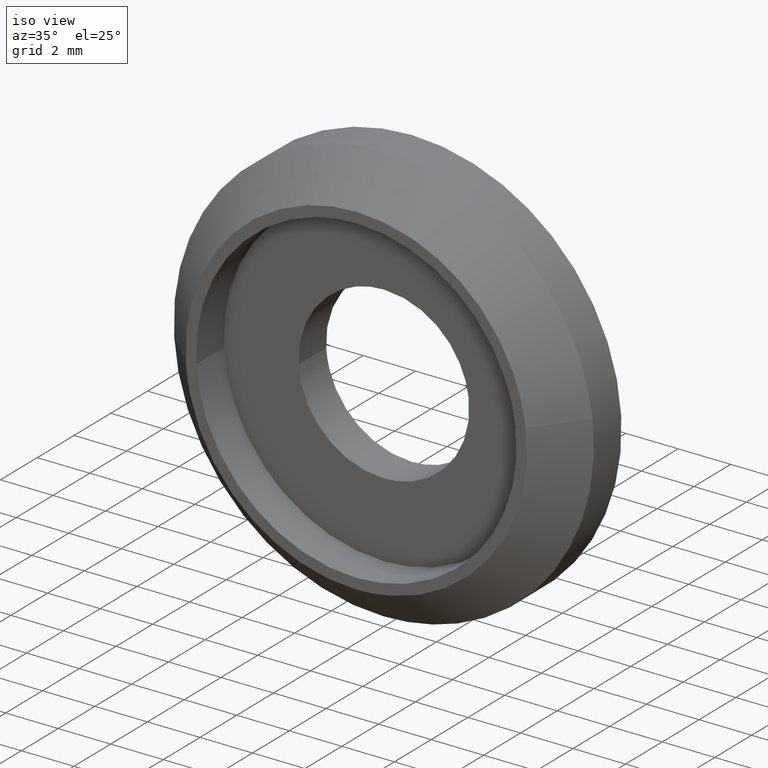
[diagram: clean part render]
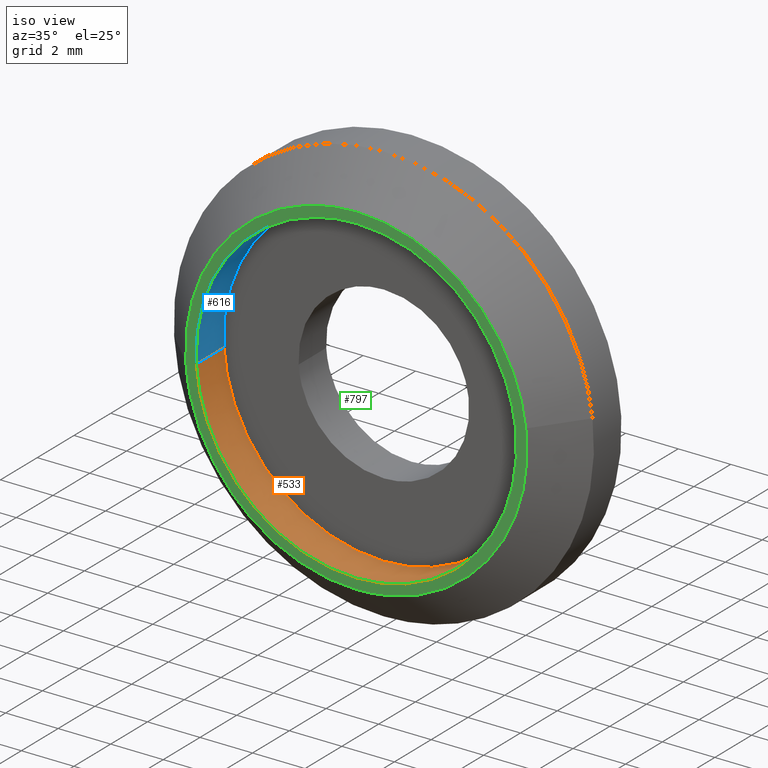
[diagram: same view with three faces highlighted in distinct colors, each labeled with its STEP entity id]
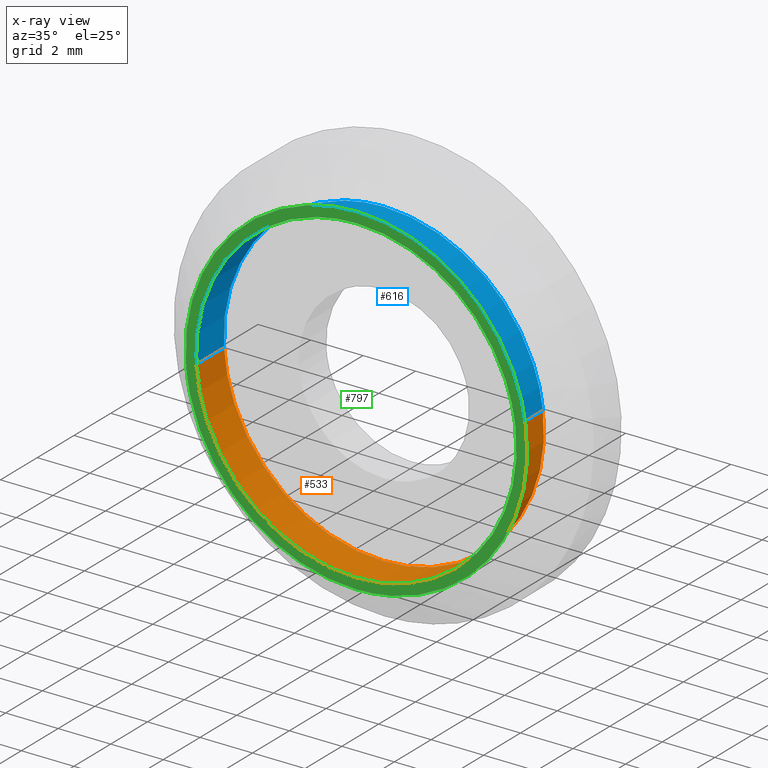
[diagram: x-ray of the same camera — body ghosted, the three highlighted faces saturated]
A machine part, iso view with three faces highlighted in distinct colors.
The next image is the same camera in x-ray (body ghosted, the three faces saturated) — at least one of them is partly hidden behind the body in this view.
Their STEP definitions:

[orange] entity #533 — the highlighted face is a freeform B-spline surface patch.
#431=CARTESIAN_POINT('',(6.057358110818365,-1.537500000000001,0.720008831406227));
#432=CARTESIAN_POINT('',(6.077964454236495,-1.537500000000000,0.546649844691664));
#433=CARTESIAN_POINT('',(6.088622270373387,-1.537500000000000,0.372396091162628));
#434=CARTESIAN_POINT('',(6.461018361536014,-1.537500000000000,-5.716226179210759));
#435=CARTESIAN_POINT('',(0.372396091162628,-1.537500000000000,-6.088622270373387));
#436=CARTESIAN_POINT('',(-5.716226179210759,-1.537500000000000,-6.461018361536014));
#437=CARTESIAN_POINT('',(-6.088622270373387,-1.537500000000000,-0.372396091162628));
#438=CARTESIAN_POINT('',(6.057358110818365,0.038437500000000,0.720008831406227));
#439=CARTESIAN_POINT('',(6.077964454236495,0.038437500000000,0.546649844691664));
#440=CARTESIAN_POINT('',(6.088622270373387,0.038437500000000,0.372396091162628));
#441=CARTESIAN_POINT('',(6.461018361536014,0.038437500000000,-5.716226179210759));
#442=CARTESIAN_POINT('',(0.372396091162628,0.038437500000000,-6.088622270373387));
#443=CARTESIAN_POINT('',(-5.716226179210759,0.038437500000000,-6.461018361536014));
#444=CARTESIAN_POINT('',(-6.088622270373387,0.038437500000000,-0.372396091162628));
#452=(BOUNDED_SURFACE()B_SPLINE_SURFACE(2,1,((#431,#438),(#432,#439),(#433,#440),(#434,#441),(#435,#442),(#436,#443),(#437,#444)),.UNSPECIFIED.,.F.,.F.,.U.)B_SPLINE_SURFACE_WITH_KNOTS((3,2,2,3),(2,2),(0.0,0.404272436876141,10.511083358779659,20.617894280683181),(0.0,1.0),.UNSPECIFIED.)GEOMETRIC_REPRESENTATION_ITEM()RATIONAL_B_SPLINE_SURFACE(((0.977505800795127,0.977505800795127),(0.988284271247462,0.988284271247462),(1.0,1.0),(0.707106781186548,0.707106781186548),(1.0,1.0),(0.707106781186548,0.707106781186548),(1.0,1.0)))REPRESENTATION_ITEM('')SURFACE());
#453=CARTESIAN_POINT('',(6.057358659377211,5.244424E-014,0.720004216408696));
#454=VERTEX_POINT('',#453);
#455=CARTESIAN_POINT('',(0.0,0.0,-6.100000000000001));
#456=VERTEX_POINT('',#455);
#457=CARTESIAN_POINT('',(6.057358659377211,5.244424E-014,0.720004216408696));
#458=CARTESIAN_POINT('',(6.100000000000000,0.0,0.361264797983567));
#459=CARTESIAN_POINT('',(6.100000000000001,0.0,0.0));
#460=CARTESIAN_POINT('',(6.100000000000001,0.0,-6.100000000000001));
#461=CARTESIAN_POINT('',(0.0,0.0,-6.100000000000001));
#469=(BOUNDED_CURVE()B_SPLINE_CURVE(2,(#457,#458,#459,#460,#461),.UNSPECIFIED.,.F.,.U.)B_SPLINE_CURVE_WITH_KNOTS((3,2,3),(0.229562602276335,0.250000000000000,0.500000000000000),.UNSPECIFIED.)CURVE()GEOMETRIC_REPRESENTATION_ITEM()RATIONAL_B_SPLINE_CURVE((0.956027006564265,0.976056099186180,1.0,0.707106781186547,1.0))REPRESENTATION_ITEM(''));
#470=EDGE_CURVE('',#454,#456,#469,.T.);
#471=ORIENTED_EDGE('',*,*,#470,.T.);
#472=CARTESIAN_POINT('',(-6.088622529358291,5.007800E-014,-0.372391856748557));
#473=VERTEX_POINT('',#472);
#474=CARTESIAN_POINT('',(0.0,0.0,-6.100000000000001));
#475=CARTESIAN_POINT('',(-5.738311006366022,0.0,-6.100000000000001));
#476=CARTESIAN_POINT('',(-6.088622529358291,5.007800E-014,-0.372391856748557));
#484=(BOUNDED_CURVE()B_SPLINE_CURVE(2,(#474,#475,#476),.UNSPECIFIED.,.F.,.U.)B_SPLINE_CURVE_WITH_KNOTS((3,3),(0.500000000000000,0.739333082241960),.UNSPECIFIED.)CURVE()GEOMETRIC_REPRESENTATION_ITEM()RATIONAL_B_SPLINE_CURVE((1.0,0.719603852694431,0.976072298856161))REPRESENTATION_ITEM(''));
#485=EDGE_CURVE('',#456,#473,#484,.T.);
#486=ORIENTED_EDGE('',*,*,#485,.T.);
#487=CARTESIAN_POINT('',(-6.088622526160913,-1.500000000000000,-0.372391909026416));
#488=VERTEX_POINT('',#487);
#489=CARTESIAN_POINT('',(-6.088622526160913,-1.500000000000000,-0.372391909026416));
#490=CARTESIAN_POINT('',(-6.088622529358291,5.007800E-014,-0.372391856748557));
#491=QUASI_UNIFORM_CURVE('',1,(#489,#490),.UNSPECIFIED.,.F.,.U.);
#492=EDGE_CURVE('',#488,#473,#491,.T.);
#493=ORIENTED_EDGE('',*,*,#492,.F.);
#494=CARTESIAN_POINT('',(0.0,-1.500000000000000,-6.100000000000001));
#495=VERTEX_POINT('',#494);
#496=CARTESIAN_POINT('',(0.0,-1.500000000000000,-6.100000000000001));
#497=CARTESIAN_POINT('',(-5.738310957003925,-1.500000000000000,-6.100000000000001));
#498=CARTESIAN_POINT('',(-6.088622526160913,-1.500000000000000,-0.372391909026416));
#506=(BOUNDED_CURVE()B_SPLINE_CURVE(2,(#496,#497,#498),.UNSPECIFIED.,.F.,.U.)B_SPLINE_CURVE_WITH_KNOTS((3,3),(0.500000000000000,0.739333080760446),.UNSPECIFIED.)CURVE()GEOMETRIC_REPRESENTATION_ITEM()RATIONAL_B_SPLINE_CURVE((1.0,0.719603854430132,0.976072295680992))REPRESENTATION_ITEM(''));
#507=EDGE_CURVE('',#495,#488,#506,.T.);
#508=ORIENTED_EDGE('',*,*,#507,.F.);
#509=CARTESIAN_POINT('',(6.057358652605915,-1.500000000000000,0.720004273375631));
#510=VERTEX_POINT('',#509);
#511=CARTESIAN_POINT('',(6.057358652605915,-1.500000000000000,0.720004273375631));
#512=CARTESIAN_POINT('',(6.100000000000001,-1.500000000000000,0.361264826768153));
#513=CARTESIAN_POINT('',(6.100000000000001,-1.500000000000000,0.0));
#514=CARTESIAN_POINT('',(6.100000000000001,-1.500000000000000,-6.100000000000001));
#515=CARTESIAN_POINT('',(0.0,-1.500000000000000,-6.100000000000001));
#523=(BOUNDED_CURVE()B_SPLINE_CURVE(2,(#511,#512,#513,#514,#515),.UNSPECIFIED.,.F.,.U.)B_SPLINE_CURVE_WITH_KNOTS((3,2,3),(0.229562600686930,0.250000000000000,0.500000000000000),.UNSPECIFIED.)CURVE()GEOMETRIC_REPRESENTATION_ITEM()RATIONAL_B_SPLINE_CURVE((0.956027003448961,0.976056097324076,1.0,0.707106781186547,1.0))REPRESENTATION_ITEM(''));
#524=EDGE_CURVE('',#510,#495,#523,.T.);
#525=ORIENTED_EDGE('',*,*,#524,.F.);
#526=CARTESIAN_POINT('',(6.057358652605915,-1.500000000000000,0.720004273375631));
#527=CARTESIAN_POINT('',(6.057358659377211,5.244424E-014,0.720004216408696));
#528=QUASI_UNIFORM_CURVE('',1,(#526,#527),.UNSPECIFIED.,.F.,.U.);
#529=EDGE_CURVE('',#510,#454,#528,.T.);
#530=ORIENTED_EDGE('',*,*,#529,.T.);
#531=EDGE_LOOP('',(#471,#486,#493,#508,#525,#530));
#532=FACE_OUTER_BOUND('',#531,.T.);
#533=ADVANCED_FACE('',(#532),#452,.F.);

[blue] entity #616 — the highlighted face is a freeform B-spline surface patch.
#453=CARTESIAN_POINT('',(6.057358659377211,5.244424E-014,0.720004216408696));
#454=VERTEX_POINT('',#453);
#472=CARTESIAN_POINT('',(-6.088622529358291,5.007800E-014,-0.372391856748557));
#473=VERTEX_POINT('',#472);
#487=CARTESIAN_POINT('',(-6.088622526160913,-1.500000000000000,-0.372391909026416));
#488=VERTEX_POINT('',#487);
#489=CARTESIAN_POINT('',(-6.088622526160913,-1.500000000000000,-0.372391909026416));
#490=CARTESIAN_POINT('',(-6.088622529358291,5.007800E-014,-0.372391856748557));
#491=QUASI_UNIFORM_CURVE('',1,(#489,#490),.UNSPECIFIED.,.F.,.U.);
#492=EDGE_CURVE('',#488,#473,#491,.T.);
#509=CARTESIAN_POINT('',(6.057358652605915,-1.500000000000000,0.720004273375631));
#510=VERTEX_POINT('',#509);
#526=CARTESIAN_POINT('',(6.057358652605915,-1.500000000000000,0.720004273375631));
#527=CARTESIAN_POINT('',(6.057358659377211,5.244424E-014,0.720004216408696));
#528=QUASI_UNIFORM_CURVE('',1,(#526,#527),.UNSPECIFIED.,.F.,.U.);
#529=EDGE_CURVE('',#510,#454,#528,.T.);
#534=CARTESIAN_POINT('',(-6.088622270373387,-1.537500000000000,-0.372396091162628));
#535=CARTESIAN_POINT('',(-6.461018361536014,-1.537500000000000,5.716226179210759));
#536=CARTESIAN_POINT('',(-0.372396091162628,-1.537500000000000,6.088622270373387));
#537=CARTESIAN_POINT('',(5.377415294120956,-1.537500000000000,6.440295800068416));
#538=CARTESIAN_POINT('',(6.057358110818365,-1.537500000000001,0.720008831406227));
#539=CARTESIAN_POINT('',(-6.088622270373387,0.038437500000000,-0.372396091162628));
#540=CARTESIAN_POINT('',(-6.461018361536014,0.038437500000000,5.716226179210759));
#541=CARTESIAN_POINT('',(-0.372396091162628,0.038437500000000,6.088622270373387));
#542=CARTESIAN_POINT('',(5.377415294120956,0.038437500000000,6.440295800068416));
#543=CARTESIAN_POINT('',(6.057358110818365,0.038437500000000,0.720008831406227));
#551=(BOUNDED_SURFACE()B_SPLINE_SURFACE(2,1,((#534,#539),(#535,#540),(#536,#541),(#537,#542),(#538,#543)),.UNSPECIFIED.,.F.,.F.,.U.)B_SPLINE_SURFACE_WITH_KNOTS((3,2,3),(2,2),(0.0,10.106810921903520,19.809349406930899),(0.0,1.0),.UNSPECIFIED.)GEOMETRIC_REPRESENTATION_ITEM()RATIONAL_B_SPLINE_SURFACE(((1.0,1.0),(0.707106781186548,0.707106781186548),(1.0,1.0),(0.718822509939086,0.718822509939086),(0.977505800795127,0.977505800795127)))REPRESENTATION_ITEM('')SURFACE());
#552=CARTESIAN_POINT('',(0.0,0.0,6.100000000000001));
#553=VERTEX_POINT('',#552);
#554=CARTESIAN_POINT('',(0.0,0.0,6.100000000000001));
#555=CARTESIAN_POINT('',(5.417868765141001,0.0,6.100000000000001));
#556=CARTESIAN_POINT('',(6.057358659377211,5.244424E-014,0.720004216408696));
#564=(BOUNDED_CURVE()B_SPLINE_CURVE(2,(#554,#555,#556),.UNSPECIFIED.,.F.,.U.)B_SPLINE_CURVE_WITH_KNOTS((3,3),(0.0,0.229562602276335),.UNSPECIFIED.)CURVE()GEOMETRIC_REPRESENTATION_ITEM()RATIONAL_B_SPLINE_CURVE((1.0,0.731050682000367,0.956027006564265))REPRESENTATION_ITEM(''));
#565=EDGE_CURVE('',#553,#454,#564,.T.);
#566=ORIENTED_EDGE('',*,*,#565,.T.);
#567=ORIENTED_EDGE('',*,*,#529,.F.);
#568=CARTESIAN_POINT('',(0.0,-1.500000000000000,6.100000000000001));
#569=VERTEX_POINT('',#568);
#570=CARTESIAN_POINT('',(0.0,-1.500000000000000,6.100000000000001));
#571=CARTESIAN_POINT('',(5.417868713829519,-1.499999999999999,6.100000000000001));
#572=CARTESIAN_POINT('',(6.057358652605915,-1.500000000000000,0.720004273375631));
#580=(BOUNDED_CURVE()B_SPLINE_CURVE(2,(#570,#571,#572),.UNSPECIFIED.,.F.,.U.)B_SPLINE_CURVE_WITH_KNOTS((3,3),(0.0,0.229562600686930),.UNSPECIFIED.)CURVE()GEOMETRIC_REPRESENTATION_ITEM()RATIONAL_B_SPLINE_CURVE((1.0,0.731050683862472,0.956027003448961))REPRESENTATION_ITEM(''));
#581=EDGE_CURVE('',#569,#510,#580,.T.);
#582=ORIENTED_EDGE('',*,*,#581,.F.);
#583=CARTESIAN_POINT('',(-6.088622526160913,-1.500000000000000,-0.372391909026416));
#584=CARTESIAN_POINT('',(-6.100000000000001,-1.500000000000000,-0.186369759190246));
#585=CARTESIAN_POINT('',(-6.100000000000001,-1.500000000000000,0.0));
#586=CARTESIAN_POINT('',(-6.100000000000001,-1.500000000000000,6.100000000000001));
#587=CARTESIAN_POINT('',(0.0,-1.500000000000000,6.100000000000001));
#595=(BOUNDED_CURVE()B_SPLINE_CURVE(2,(#583,#584,#585,#586,#587),.UNSPECIFIED.,.F.,.U.)B_SPLINE_CURVE_WITH_KNOTS((3,2,3),(0.739333080760446,0.750000000000000,1.0),.UNSPECIFIED.)CURVE()GEOMETRIC_REPRESENTATION_ITEM()RATIONAL_B_SPLINE_CURVE((0.976072295680992,0.987502926756415,1.0,0.707106781186547,1.0))REPRESENTATION_ITEM(''));
#596=EDGE_CURVE('',#488,#569,#595,.T.);
#597=ORIENTED_EDGE('',*,*,#596,.F.);
#598=ORIENTED_EDGE('',*,*,#492,.T.);
#599=CARTESIAN_POINT('',(-6.088622529358291,5.007800E-014,-0.372391856748557));
#600=CARTESIAN_POINT('',(-6.100000000000001,0.0,-0.186369732978027));
#601=CARTESIAN_POINT('',(-6.100000000000001,0.0,0.0));
#602=CARTESIAN_POINT('',(-6.100000000000001,0.0,6.100000000000001));
#603=CARTESIAN_POINT('',(0.0,0.0,6.100000000000001));
#611=(BOUNDED_CURVE()B_SPLINE_CURVE(2,(#599,#600,#601,#602,#603),.UNSPECIFIED.,.F.,.U.)B_SPLINE_CURVE_WITH_KNOTS((3,2,3),(0.739333082241960,0.750000000000000,1.0),.UNSPECIFIED.)CURVE()GEOMETRIC_REPRESENTATION_ITEM()RATIONAL_B_SPLINE_CURVE((0.976072298856161,0.987502928492117,1.0,0.707106781186547,1.0))REPRESENTATION_ITEM(''));
#612=EDGE_CURVE('',#473,#553,#611,.T.);
#613=ORIENTED_EDGE('',*,*,#612,.T.);
#614=EDGE_LOOP('',(#566,#567,#582,#597,#598,#613));
#615=FACE_OUTER_BOUND('',#614,.T.);
#616=ADVANCED_FACE('',(#615),#551,.F.);

[green] entity #797 — the highlighted face is a freeform B-spline surface patch.
#487=CARTESIAN_POINT('',(-6.088622526160913,-1.500000000000000,-0.372391909026416));
#488=VERTEX_POINT('',#487);
#494=CARTESIAN_POINT('',(0.0,-1.500000000000000,-6.100000000000001));
#495=VERTEX_POINT('',#494);
#496=CARTESIAN_POINT('',(0.0,-1.500000000000000,-6.100000000000001));
#497=CARTESIAN_POINT('',(-5.738310957003925,-1.500000000000000,-6.100000000000001));
#498=CARTESIAN_POINT('',(-6.088622526160913,-1.500000000000000,-0.372391909026416));
#506=(BOUNDED_CURVE()B_SPLINE_CURVE(2,(#496,#497,#498),.UNSPECIFIED.,.F.,.U.)B_SPLINE_CURVE_WITH_KNOTS((3,3),(0.500000000000000,0.739333080760446),.UNSPECIFIED.)CURVE()GEOMETRIC_REPRESENTATION_ITEM()RATIONAL_B_SPLINE_CURVE((1.0,0.719603854430132,0.976072295680992))REPRESENTATION_ITEM(''));
#507=EDGE_CURVE('',#495,#488,#506,.T.);
#509=CARTESIAN_POINT('',(6.057358652605915,-1.500000000000000,0.720004273375631));
#510=VERTEX_POINT('',#509);
#511=CARTESIAN_POINT('',(6.057358652605915,-1.500000000000000,0.720004273375631));
#512=CARTESIAN_POINT('',(6.100000000000001,-1.500000000000000,0.361264826768153));
#513=CARTESIAN_POINT('',(6.100000000000001,-1.500000000000000,0.0));
#514=CARTESIAN_POINT('',(6.100000000000001,-1.500000000000000,-6.100000000000001));
#515=CARTESIAN_POINT('',(0.0,-1.500000000000000,-6.100000000000001));
#523=(BOUNDED_CURVE()B_SPLINE_CURVE(2,(#511,#512,#513,#514,#515),.UNSPECIFIED.,.F.,.U.)B_SPLINE_CURVE_WITH_KNOTS((3,2,3),(0.229562600686930,0.250000000000000,0.500000000000000),.UNSPECIFIED.)CURVE()GEOMETRIC_REPRESENTATION_ITEM()RATIONAL_B_SPLINE_CURVE((0.956027003448961,0.976056097324076,1.0,0.707106781186547,1.0))REPRESENTATION_ITEM(''));
#524=EDGE_CURVE('',#510,#495,#523,.T.);
#568=CARTESIAN_POINT('',(0.0,-1.500000000000000,6.100000000000001));
#569=VERTEX_POINT('',#568);
#570=CARTESIAN_POINT('',(0.0,-1.500000000000000,6.100000000000001));
#571=CARTESIAN_POINT('',(5.417868713829519,-1.499999999999999,6.100000000000001));
#572=CARTESIAN_POINT('',(6.057358652605915,-1.500000000000000,0.720004273375631));
#580=(BOUNDED_CURVE()B_SPLINE_CURVE(2,(#570,#571,#572),.UNSPECIFIED.,.F.,.U.)B_SPLINE_CURVE_WITH_KNOTS((3,3),(0.0,0.229562600686930),.UNSPECIFIED.)CURVE()GEOMETRIC_REPRESENTATION_ITEM()RATIONAL_B_SPLINE_CURVE((1.0,0.731050683862472,0.956027003448961))REPRESENTATION_ITEM(''));
#581=EDGE_CURVE('',#569,#510,#580,.T.);
#583=CARTESIAN_POINT('',(-6.088622526160913,-1.500000000000000,-0.372391909026416));
#584=CARTESIAN_POINT('',(-6.100000000000001,-1.500000000000000,-0.186369759190246));
#585=CARTESIAN_POINT('',(-6.100000000000001,-1.500000000000000,0.0));
#586=CARTESIAN_POINT('',(-6.100000000000001,-1.500000000000000,6.100000000000001));
#587=CARTESIAN_POINT('',(0.0,-1.500000000000000,6.100000000000001));
#595=(BOUNDED_CURVE()B_SPLINE_CURVE(2,(#583,#584,#585,#586,#587),.UNSPECIFIED.,.F.,.U.)B_SPLINE_CURVE_WITH_KNOTS((3,2,3),(0.739333080760446,0.750000000000000,1.0),.UNSPECIFIED.)CURVE()GEOMETRIC_REPRESENTATION_ITEM()RATIONAL_B_SPLINE_CURVE((0.976072295680992,0.987502926756415,1.0,0.707106781186547,1.0))REPRESENTATION_ITEM(''));
#596=EDGE_CURVE('',#488,#569,#595,.T.);
#639=CARTESIAN_POINT('',(6.454561921363924,-1.499999999998524,0.767222525280608));
#640=VERTEX_POINT('',#639);
#641=CARTESIAN_POINT('',(0.0,-1.500000000000000,-6.500000000000000));
#642=VERTEX_POINT('',#641);
#643=CARTESIAN_POINT('',(6.454561921363924,-1.499999999998525,0.767222525280608));
#644=CARTESIAN_POINT('',(6.500000000000000,-1.500000000000000,0.384956777749042));
#645=CARTESIAN_POINT('',(6.500000000000000,-1.500000000000000,0.0));
#646=CARTESIAN_POINT('',(6.500000000000000,-1.500000000000000,-6.500000000000000));
#647=CARTESIAN_POINT('',(0.0,-1.500000000000000,-6.500000000000000));
#655=(BOUNDED_CURVE()B_SPLINE_CURVE(2,(#643,#644,#645,#646,#647),.UNSPECIFIED.,.F.,.U.)B_SPLINE_CURVE_WITH_KNOTS((3,2,3),(0.229562473515042,0.250000000000000,0.500000000000000),.UNSPECIFIED.)CURVE()GEOMETRIC_REPRESENTATION_ITEM()RATIONAL_B_SPLINE_CURVE((0.956026754186705,0.976055948332942,1.0,0.707106781186547,1.0))REPRESENTATION_ITEM(''));
#656=EDGE_CURVE('',#640,#642,#655,.T.);
#658=CARTESIAN_POINT('',(-6.487874580296803,-1.500001690434756,-0.396814131159551));
#659=VERTEX_POINT('',#658);
#660=CARTESIAN_POINT('',(0.0,-1.500000000000000,-6.500000000000000));
#661=CARTESIAN_POINT('',(-6.114589792884783,-1.500000845217378,-6.499999948400877));
#662=CARTESIAN_POINT('',(-6.487874580296803,-1.500001690434756,-0.396814131159551));
#670=(BOUNDED_CURVE()B_SPLINE_CURVE(2,(#660,#661,#662),.UNSPECIFIED.,.F.,.U.)B_SPLINE_CURVE_WITH_KNOTS((3,3),(0.500000000000000,0.739332996087604),.UNSPECIFIED.)CURVE()GEOMETRIC_REPRESENTATION_ITEM()RATIONAL_B_SPLINE_CURVE((1.0,0.719603953630537,0.976072114210851))REPRESENTATION_ITEM(''));
#671=EDGE_CURVE('',#642,#659,#670,.T.);
#707=CARTESIAN_POINT('',(0.0,-1.500000000000000,6.500000000000000));
#708=VERTEX_POINT('',#707);
#709=CARTESIAN_POINT('',(0.0,-1.500000000000000,6.500000000000000));
#710=CARTESIAN_POINT('',(5.773134418663169,-1.500000000000000,6.500000000000001));
#711=CARTESIAN_POINT('',(6.454561921363924,-1.499999999998525,0.767222525280608));
#719=(BOUNDED_CURVE()B_SPLINE_CURVE(2,(#709,#710,#711),.UNSPECIFIED.,.F.,.U.)B_SPLINE_CURVE_WITH_KNOTS((3,3),(0.0,0.229562473515042),.UNSPECIFIED.)CURVE()GEOMETRIC_REPRESENTATION_ITEM()RATIONAL_B_SPLINE_CURVE((1.0,0.731050832853606,0.956026754186705))REPRESENTATION_ITEM(''));
#720=EDGE_CURVE('',#708,#640,#719,.T.);
#726=CARTESIAN_POINT('',(-6.487874580296803,-1.500001690434756,-0.396814131159551));
#727=CARTESIAN_POINT('',(-6.499998336965248,-1.500001666142294,-0.198592221632066));
#728=CARTESIAN_POINT('',(-6.499998362740728,-1.500001640318650,0.000000100138742));
#729=CARTESIAN_POINT('',(-6.499999206381681,-1.500000795101272,6.500000048539619));
#730=CARTESIAN_POINT('',(0.0,-1.500000000000000,6.500000000000000));
#738=(BOUNDED_CURVE()B_SPLINE_CURVE(2,(#726,#727,#728,#729,#730),.UNSPECIFIED.,.F.,.U.)B_SPLINE_CURVE_WITH_KNOTS((3,2,3),(0.739332996087604,0.750000000000000,1.0),.UNSPECIFIED.)CURVE()GEOMETRIC_REPRESENTATION_ITEM()RATIONAL_B_SPLINE_CURVE((0.976072114210851,0.987502827556010,1.0,0.707106781186547,1.0))REPRESENTATION_ITEM(''));
#739=EDGE_CURVE('',#659,#708,#738,.T.);
#780=CARTESIAN_POINT('',(-7.149190550234020,-1.500000000000000,7.149349974803477));
#781=CARTESIAN_POINT('',(-7.149190550234020,-1.500000000000000,-7.149350323490650));
#782=CARTESIAN_POINT('',(7.149231695320309,-1.500000000000000,7.149349974803477));
#783=CARTESIAN_POINT('',(7.149231695320309,-1.500000000000000,-7.149350323490650));
#784=B_SPLINE_SURFACE_WITH_KNOTS('',1,1,((#780,#782),(#781,#783)),.UNSPECIFIED.,.F.,.F.,.U.,(2,2),(2,2),(0.0,14.298700298294129),(0.0,14.298422245554329),.UNSPECIFIED.);
#785=ORIENTED_EDGE('',*,*,#739,.F.);
#786=ORIENTED_EDGE('',*,*,#671,.F.);
#787=ORIENTED_EDGE('',*,*,#656,.F.);
#788=ORIENTED_EDGE('',*,*,#720,.F.);
#789=EDGE_LOOP('',(#785,#786,#787,#788));
#790=FACE_OUTER_BOUND('',#789,.T.);
#791=ORIENTED_EDGE('',*,*,#507,.T.);
#792=ORIENTED_EDGE('',*,*,#596,.T.);
#793=ORIENTED_EDGE('',*,*,#581,.T.);
#794=ORIENTED_EDGE('',*,*,#524,.T.);
#795=EDGE_LOOP('',(#791,#792,#793,#794));
#796=FACE_BOUND('',#795,.T.);
#797=ADVANCED_FACE('',(#790,#796),#784,.T.);